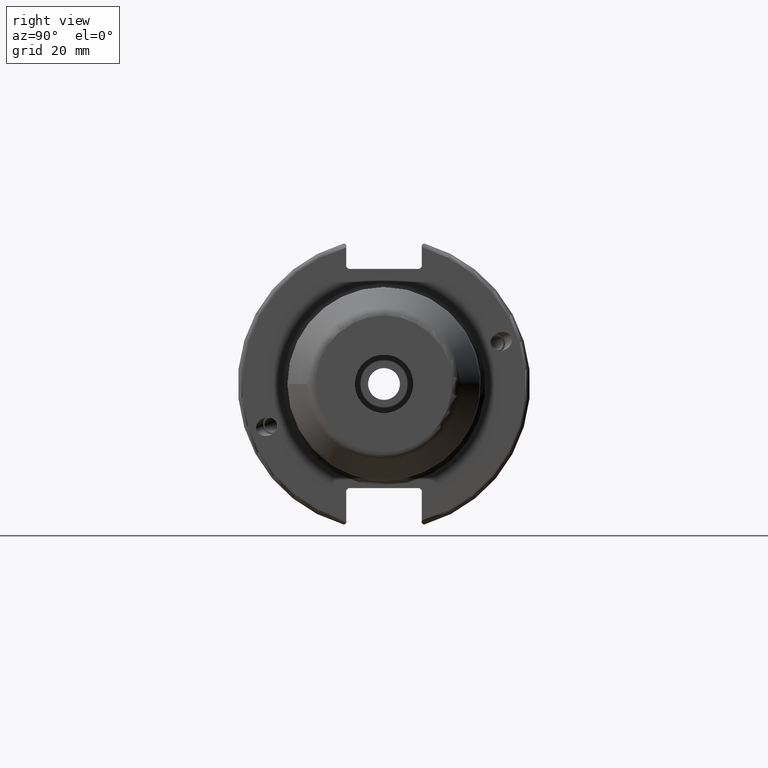
[diagram: clean part render]
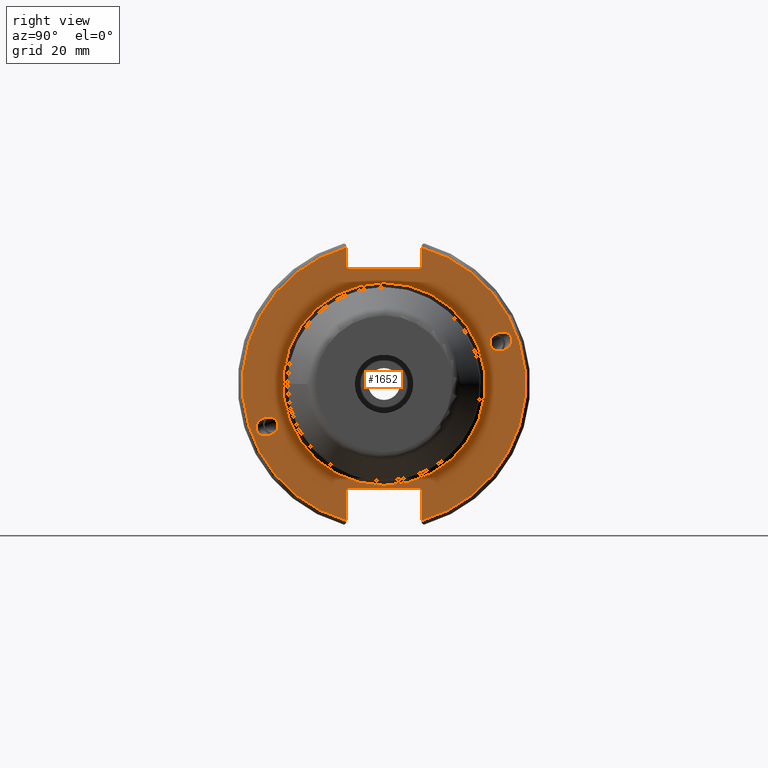
[diagram: same view with one face highlighted and labeled with its STEP entity id]
A machine part, right view. The second image highlights one B-rep face of the part: STEP entity #1652.
In plain terms, the highlighted planar face has unit normal (1, 0, 0).
Its self-contained STEP definition (entity closure, byte-faithful):
#53=FACE_BOUND('',#467,.T.);
#54=FACE_BOUND('',#468,.T.);
#55=FACE_BOUND('',#469,.T.);
#69=ELLIPSE('',#1820,2.44154917752292,2.00000000000001);
#70=ELLIPSE('',#1821,2.44154917752292,2.00000000000001);
#89=PLANE('',#1817);
#147=LINE('',#2638,#239);
#148=LINE('',#2640,#240);
#149=LINE('',#2642,#241);
#150=LINE('',#2644,#242);
#151=LINE('',#2646,#243);
#152=LINE('',#2650,#244);
#153=LINE('',#2652,#245);
#154=LINE('',#2654,#246);
#155=LINE('',#2656,#247);
#156=LINE('',#2657,#248);
#239=VECTOR('',#2121,10.);
#240=VECTOR('',#2122,10.);
#241=VECTOR('',#2123,10.);
#242=VECTOR('',#2124,10.);
#243=VECTOR('',#2125,10.);
#244=VECTOR('',#2128,10.);
#245=VECTOR('',#2129,10.);
#246=VECTOR('',#2130,10.);
#247=VECTOR('',#2131,10.);
#248=VECTOR('',#2132,10.);
#370=FACE_OUTER_BOUND('',#466,.T.);
#466=EDGE_LOOP('',(#1206,#1207,#1208,#1209,#1210,#1211,#1212,#1213,#1214,
#1215,#1216,#1217));
#467=EDGE_LOOP('',(#1218));
#468=EDGE_LOOP('',(#1219));
#469=EDGE_LOOP('',(#1220));
#605=CIRCLE('',#1816,22.);
#606=CIRCLE('',#1818,30.75);
#607=CIRCLE('',#1819,30.75);
#705=VERTEX_POINT('',#2630);
#706=VERTEX_POINT('',#2634);
#707=VERTEX_POINT('',#2635);
#708=VERTEX_POINT('',#2637);
#709=VERTEX_POINT('',#2639);
#710=VERTEX_POINT('',#2641);
#711=VERTEX_POINT('',#2643);
#712=VERTEX_POINT('',#2645);
#713=VERTEX_POINT('',#2647);
#714=VERTEX_POINT('',#2649);
#715=VERTEX_POINT('',#2651);
#716=VERTEX_POINT('',#2653);
#717=VERTEX_POINT('',#2655);
#718=VERTEX_POINT('',#2658);
#719=VERTEX_POINT('',#2660);
#894=EDGE_CURVE('',#705,#705,#605,.T.);
#895=EDGE_CURVE('',#706,#707,#606,.T.);
#896=EDGE_CURVE('',#706,#708,#147,.T.);
#897=EDGE_CURVE('',#709,#708,#148,.T.);
#898=EDGE_CURVE('',#709,#710,#149,.T.);
#899=EDGE_CURVE('',#711,#710,#150,.T.);
#900=EDGE_CURVE('',#711,#712,#151,.T.);
#901=EDGE_CURVE('',#713,#712,#607,.T.);
#902=EDGE_CURVE('',#713,#714,#152,.T.);
#903=EDGE_CURVE('',#715,#714,#153,.T.);
#904=EDGE_CURVE('',#715,#716,#154,.T.);
#905=EDGE_CURVE('',#717,#716,#155,.T.);
#906=EDGE_CURVE('',#717,#707,#156,.T.);
#907=EDGE_CURVE('',#718,#718,#69,.T.);
#908=EDGE_CURVE('',#719,#719,#70,.T.);
#1206=ORIENTED_EDGE('',*,*,#895,.F.);
#1207=ORIENTED_EDGE('',*,*,#896,.T.);
#1208=ORIENTED_EDGE('',*,*,#897,.F.);
#1209=ORIENTED_EDGE('',*,*,#898,.T.);
#1210=ORIENTED_EDGE('',*,*,#899,.F.);
#1211=ORIENTED_EDGE('',*,*,#900,.T.);
#1212=ORIENTED_EDGE('',*,*,#901,.F.);
#1213=ORIENTED_EDGE('',*,*,#902,.T.);
#1214=ORIENTED_EDGE('',*,*,#903,.F.);
#1215=ORIENTED_EDGE('',*,*,#904,.T.);
#1216=ORIENTED_EDGE('',*,*,#905,.F.);
#1217=ORIENTED_EDGE('',*,*,#906,.T.);
#1218=ORIENTED_EDGE('',*,*,#907,.T.);
#1219=ORIENTED_EDGE('',*,*,#908,.T.);
#1220=ORIENTED_EDGE('',*,*,#894,.F.);
#1652=ADVANCED_FACE('',(#370,#53,#54,#55),#89,.T.);
#1816=AXIS2_PLACEMENT_3D('',#2632,#2115,#2116);
#1817=AXIS2_PLACEMENT_3D('',#2633,#2117,#2118);
#1818=AXIS2_PLACEMENT_3D('',#2636,#2119,#2120);
#1819=AXIS2_PLACEMENT_3D('',#2648,#2126,#2127);
#1820=AXIS2_PLACEMENT_3D('',#2659,#2133,#2134);
#1821=AXIS2_PLACEMENT_3D('',#2661,#2135,#2136);
#2115=DIRECTION('center_axis',(1.,0.,0.));
#2116=DIRECTION('ref_axis',(0.,-1.,-1.22464679914735E-16));
#2117=DIRECTION('center_axis',(1.,0.,0.));
#2118=DIRECTION('ref_axis',(0.,0.,-1.));
#2119=DIRECTION('center_axis',(-1.,0.,0.));
#2120=DIRECTION('ref_axis',(0.,1.,-6.12323399573677E-17));
#2121=DIRECTION('',(0.,0.,-1.));
#2122=DIRECTION('',(0.,0.707106781186549,0.707106781186546));
#2123=DIRECTION('',(0.,-1.,0.));
#2124=DIRECTION('',(0.,0.70710678118655,-0.707106781186545));
#2125=DIRECTION('',(0.,0.,1.));
#2126=DIRECTION('center_axis',(-1.,0.,0.));
#2127=DIRECTION('ref_axis',(0.,-1.,1.60812264967664E-16));
#2128=DIRECTION('',(0.,0.,1.));
#2129=DIRECTION('',(0.,-0.707106781186549,-0.707106781186546));
#2130=DIRECTION('',(0.,1.,0.));
#2131=DIRECTION('',(0.,-0.707106781186549,0.707106781186546));
#2132=DIRECTION('',(0.,0.,-1.));
#2133=DIRECTION('center_axis',(-1.,0.,0.));
#2134=DIRECTION('ref_axis',(0.,-0.939692620785907,-0.342020143325672));
#2135=DIRECTION('center_axis',(-1.,0.,0.));
#2136=DIRECTION('ref_axis',(0.,0.939692620785907,0.342020143325672));
#2630=CARTESIAN_POINT('',(19.05,-2.69422295812418E-15,-22.));
#2632=CARTESIAN_POINT('Origin',(19.05,0.,0.));
#2633=CARTESIAN_POINT('Origin',(19.05,0.,0.));
#2634=CARTESIAN_POINT('',(19.05,8.19,29.6392712461019));
#2635=CARTESIAN_POINT('',(19.05,8.19,-29.6392712461019));
#2636=CARTESIAN_POINT('Origin',(19.05,0.,0.));
#2637=CARTESIAN_POINT('',(19.05,8.19,25.5));
#2638=CARTESIAN_POINT('',(19.05,8.19,12.5));
#2639=CARTESIAN_POINT('',(19.05,7.69,25.));
#2640=CARTESIAN_POINT('',(19.05,-0.35750000000001,16.9525));
#2641=CARTESIAN_POINT('',(19.05,-7.69,25.));
#2642=CARTESIAN_POINT('',(19.05,0.,25.));
#2643=CARTESIAN_POINT('',(19.05,-8.19,25.5));
#2644=CARTESIAN_POINT('',(19.05,0.357500000000014,16.9525));
#2645=CARTESIAN_POINT('',(19.05,-8.19,29.6392712461019));
#2646=CARTESIAN_POINT('',(19.05,-8.19,12.5));
#2647=CARTESIAN_POINT('',(19.05,-8.19,-29.6392712461019));
#2648=CARTESIAN_POINT('Origin',(19.05,0.,0.));
#2649=CARTESIAN_POINT('',(19.05,-8.19,-23.1));
#2650=CARTESIAN_POINT('',(19.05,-8.19,-11.3));
#2651=CARTESIAN_POINT('',(19.05,-7.69,-22.6));
#2652=CARTESIAN_POINT('',(19.05,-0.242499999999991,-15.1525));
#2653=CARTESIAN_POINT('',(19.05,7.69,-22.6));
#2654=CARTESIAN_POINT('',(19.05,-2.77555756156289E-16,-22.6));
#2655=CARTESIAN_POINT('',(19.05,8.19,-23.1));
#2656=CARTESIAN_POINT('',(19.05,0.242499999999989,-15.1525));
#2657=CARTESIAN_POINT('',(19.05,8.19,-11.3));
#2658=CARTESIAN_POINT('',(19.05,-23.0773950158153,-8.39948487015999));
#2659=CARTESIAN_POINT('Origin',(19.05,-25.3717007612195,-9.23454386979305));
#2660=CARTESIAN_POINT('',(19.05,23.0773950158153,8.39948487015999));
#2661=CARTESIAN_POINT('Origin',(19.05,25.3717007612195,9.23454386979305));